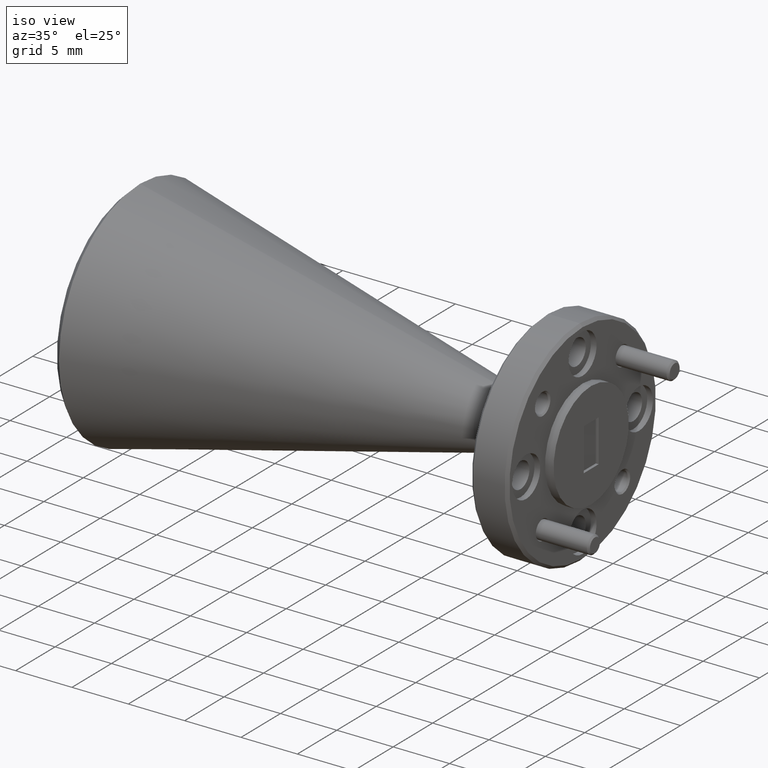
[diagram: clean part render]
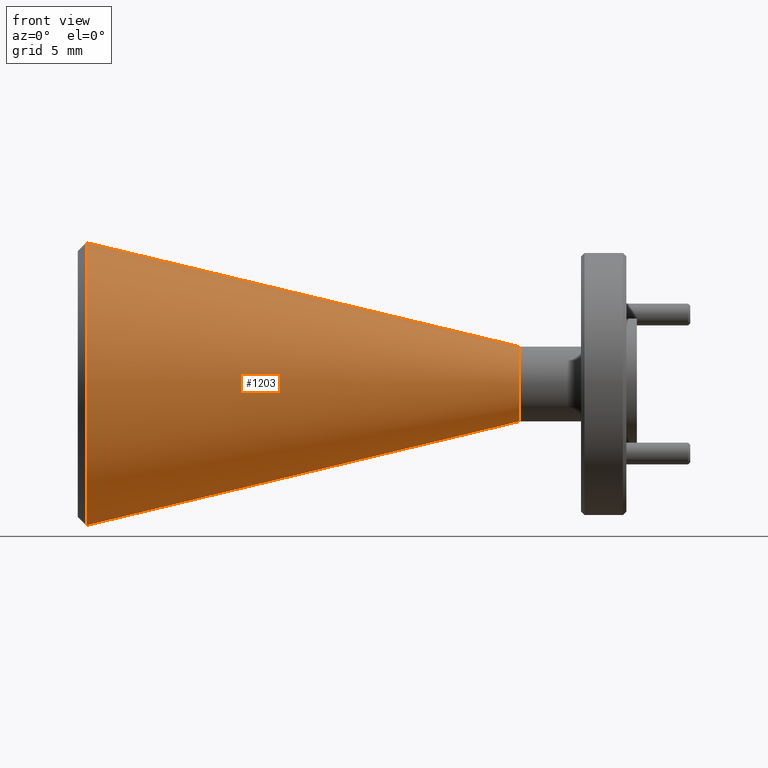
[diagram: tour spotlight — one face highlighted and labeled with its STEP entity id]
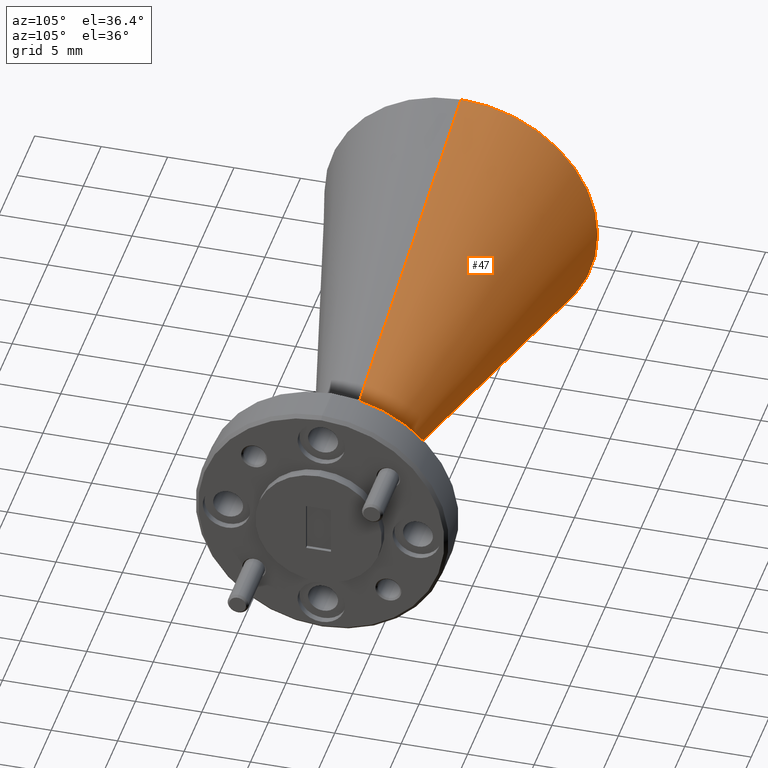
[diagram: tour spotlight — one face highlighted and labeled with its STEP entity id]
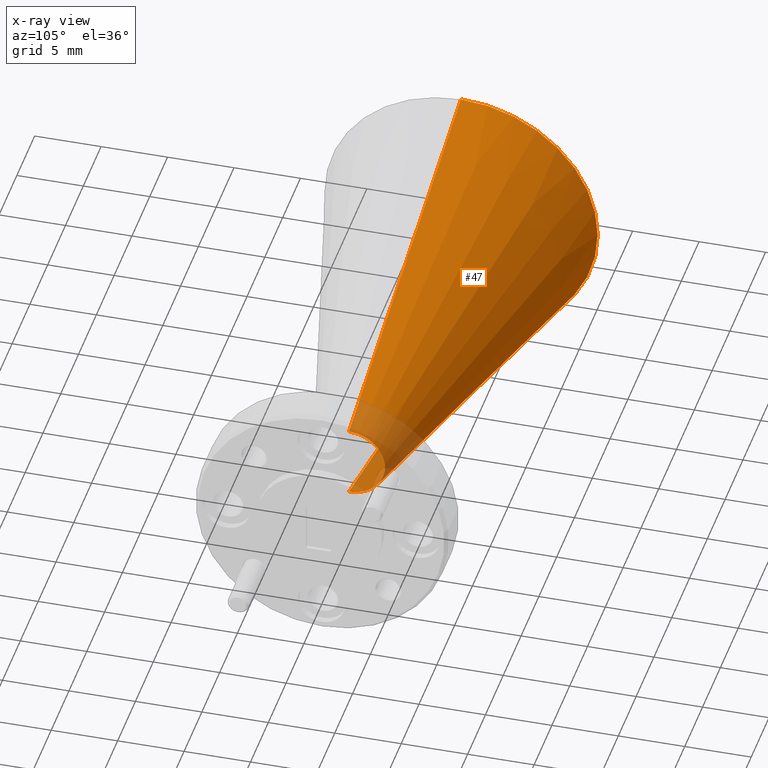
[diagram: x-ray of the same camera — body ghosted, this tour face saturated]
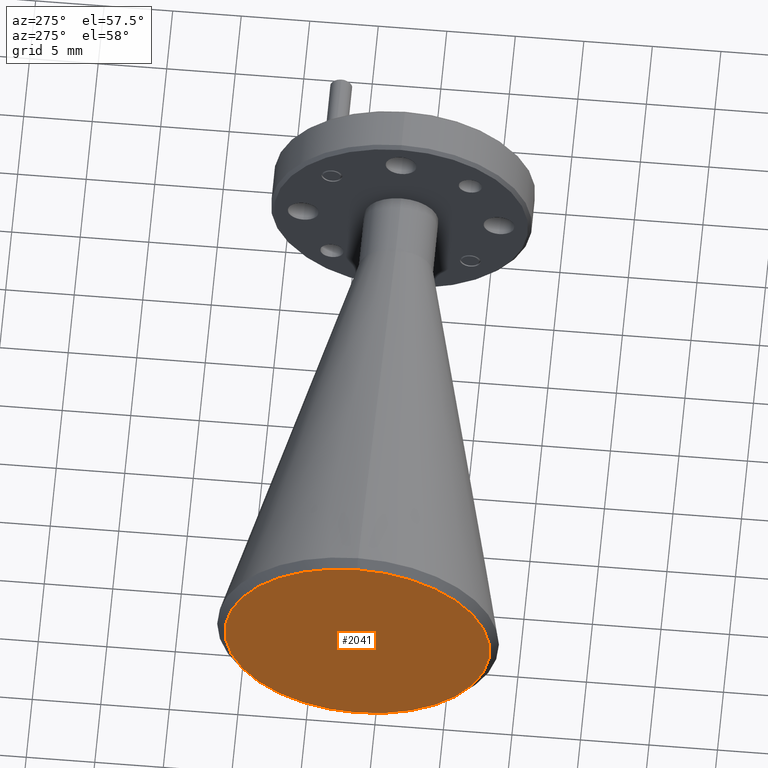
[diagram: tour spotlight — one face highlighted and labeled with its STEP entity id]
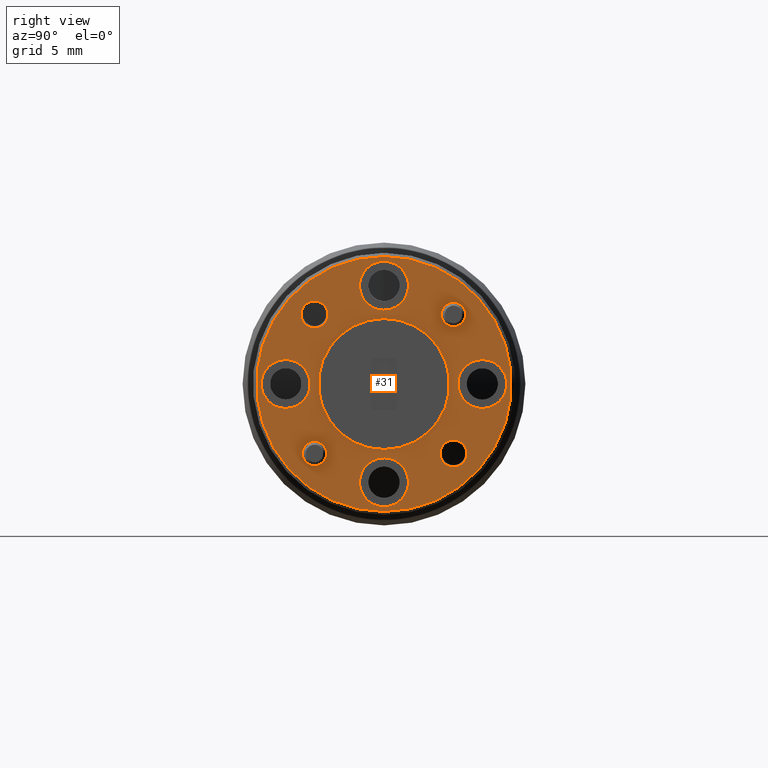
[diagram: tour spotlight — one face highlighted and labeled with its STEP entity id]
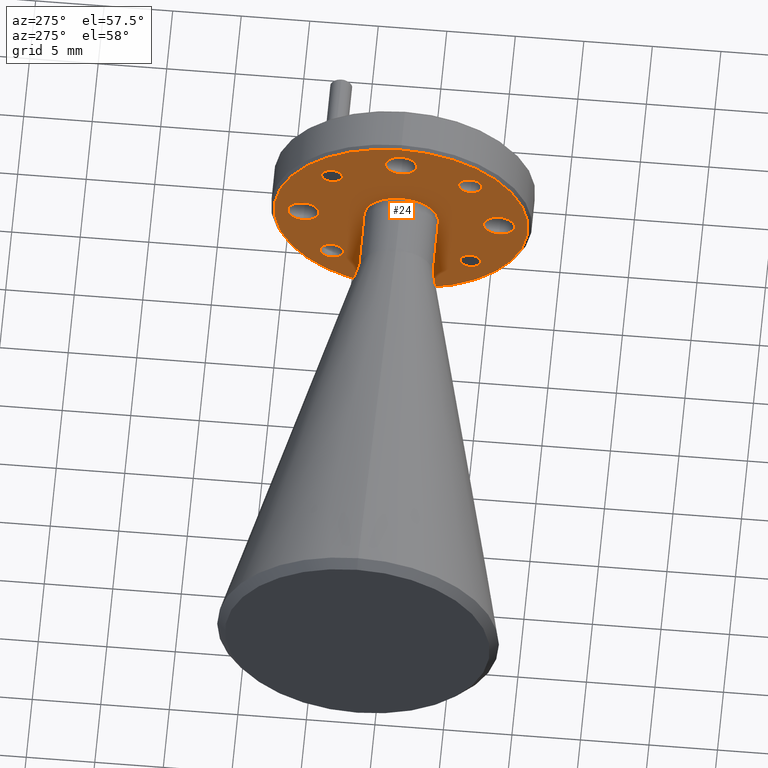
[diagram: tour spotlight — one face highlighted and labeled with its STEP entity id]
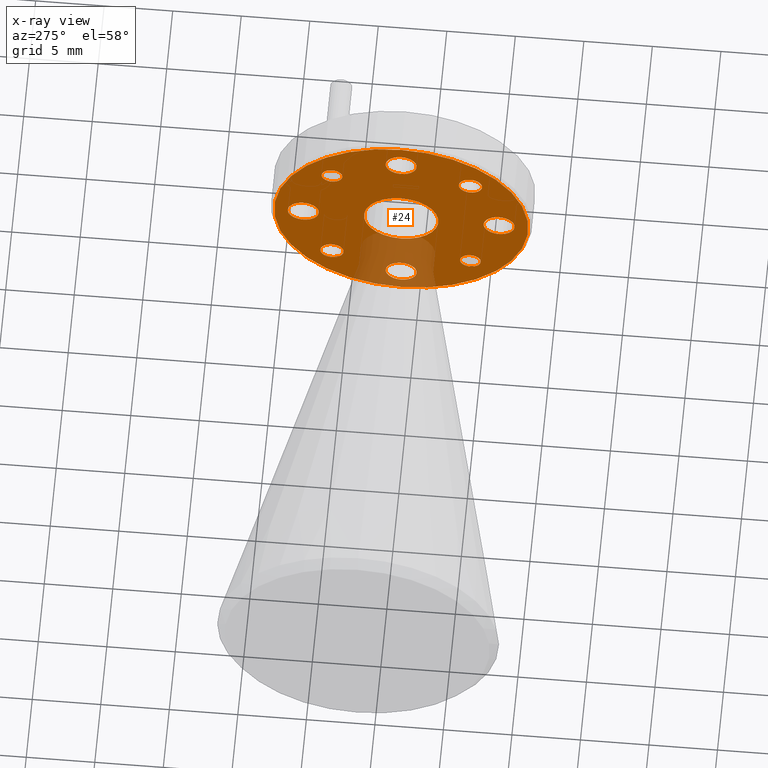
[diagram: x-ray of the same camera — body ghosted, this tour face saturated]
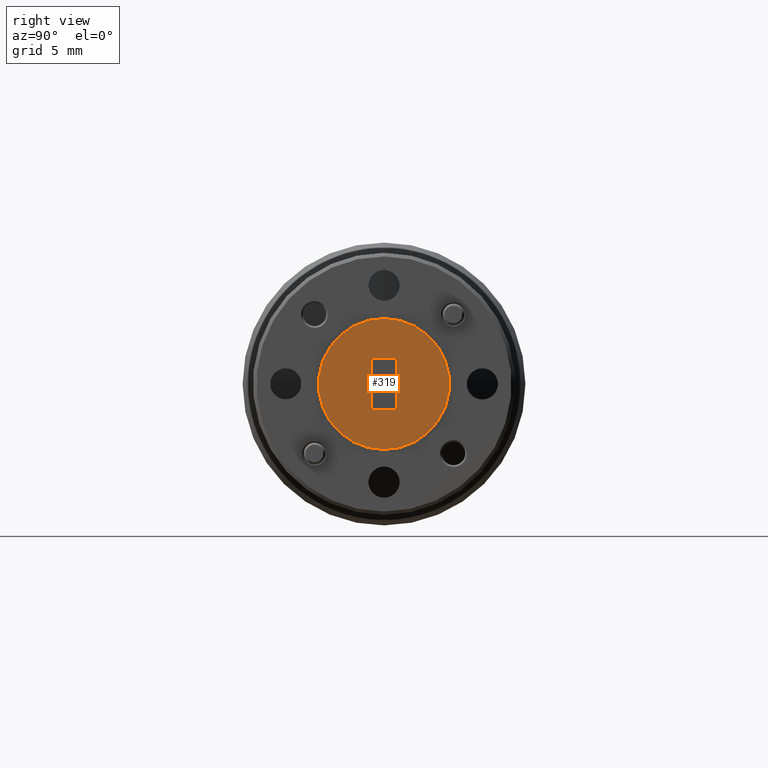
[diagram: tour spotlight — one face highlighted and labeled with its STEP entity id]
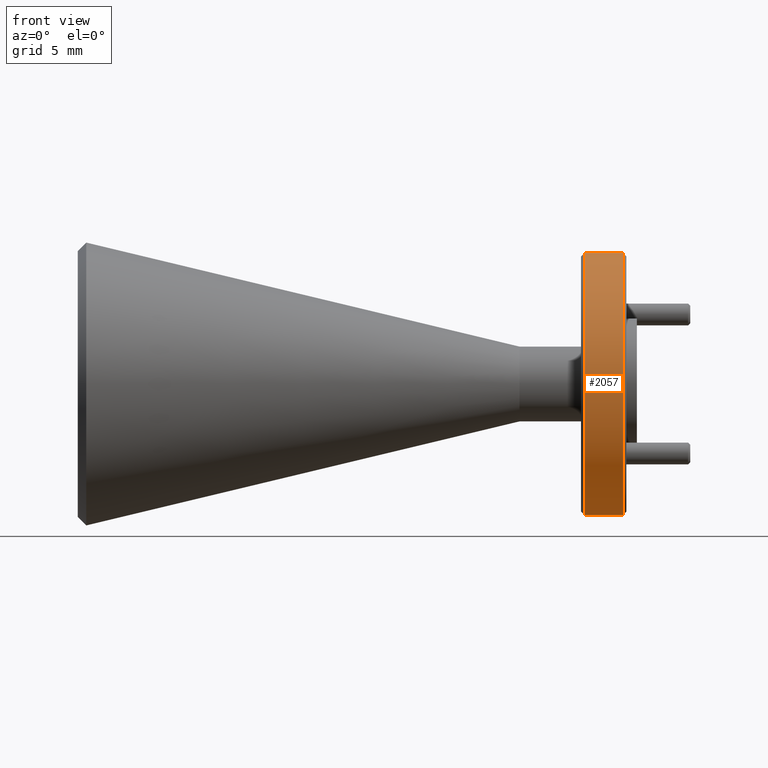
[diagram: tour spotlight — one face highlighted and labeled with its STEP entity id]
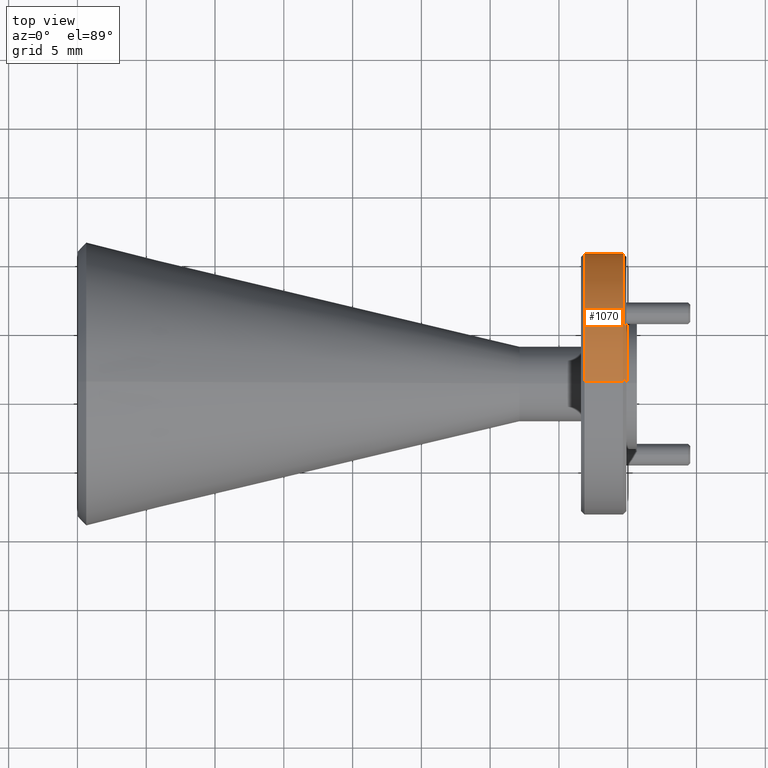
[diagram: tour spotlight — one face highlighted and labeled with its STEP entity id]
A machine part: a face-by-face anatomy tour. The part has 75 B-rep faces; the first image is the clean iso view, then the 8 largest visible faces are spotlighted one at a time (largest first), each with its STEP entity span.

Face 1 — front view, entity #1203. In plain terms, the highlighted conical surface has half-angle 13.5 deg.
Definition (entity closure, byte-faithful):
#20 = AXIS2_PLACEMENT_3D ( 'NONE', #266, #433, #273 ) ;
#60 = VERTEX_POINT ( 'NONE', #653 ) ;
#70 = CARTESIAN_POINT ( 'NONE',  ( -0.3684701128874876600, 0.6410890014899649500, 0.5017078273424021600 ) ) ;
#115 = LINE ( 'NONE', #672, #532 ) ;
#161 = EDGE_CURVE ( 'NONE', #981, #60, #1430, .T. ) ;
#212 = FACE_OUTER_BOUND ( 'NONE', #251, .T. ) ;
#251 = EDGE_LOOP ( 'NONE', ( #612, #2055, #1033, #1363 ) ) ;
#266 = CARTESIAN_POINT ( 'NONE',  ( 0.8715063555128933500, 0.6410890014899649500, 0.9063998391645010600 ) ) ;
#273 = DIRECTION ( 'NONE',  ( 0.0000000000000000000, 0.0000000000000000000, 1.000000000000000000 ) ) ;
#373 = DIRECTION ( 'NONE',  ( 0.0000000000000000000, 0.0000000000000000000, -1.000000000000000000 ) ) ;
#433 = DIRECTION ( 'NONE',  ( -1.000000000000000000, 0.0000000000000000000, 0.0000000000000000000 ) ) ;
#481 = VERTEX_POINT ( 'NONE', #70 ) ;
#532 = VECTOR ( 'NONE', #1854, 39.37007874015748100 ) ;
#566 = VECTOR ( 'NONE', #1681, 39.37007874015748100 ) ;
#611 = EDGE_CURVE ( 'NONE', #60, #481, #1426, .T. ) ;
#612 = ORIENTED_EDGE ( 'NONE', *, *, #879, .F. ) ;
#653 = CARTESIAN_POINT ( 'NONE',  ( -0.3684701128874876600, 0.6410890014899649500, 1.311091850986599900 ) ) ;
#672 = CARTESIAN_POINT ( 'NONE',  ( 0.8715063555128933500, 0.6410890014899649500, 0.7993998391645010800 ) ) ;
#705 = CONICAL_SURFACE ( 'NONE', #20, 0.1069999999999999800, 0.2356194490192274100 ) ;
#879 = EDGE_CURVE ( 'NONE', #1340, #481, #115, .T. ) ;
#981 = VERTEX_POINT ( 'NONE', #1959 ) ;
#989 = CARTESIAN_POINT ( 'NONE',  ( 0.8715063555128933500, 0.6410890014899649500, 0.9063998391645010600 ) ) ;
#1033 = ORIENTED_EDGE ( 'NONE', *, *, #161, .T. ) ;
#1086 = DIRECTION ( 'NONE',  ( 0.0000000000000000000, 0.0000000000000000000, -1.000000000000000000 ) ) ;
#1197 = CARTESIAN_POINT ( 'NONE',  ( 0.8715063555128933500, 0.6410890014899649500, 1.013399839164500900 ) ) ;
#1203 = ADVANCED_FACE ( 'NONE', ( #212 ), #705, .T. ) ;
#1340 = VERTEX_POINT ( 'NONE', #1873 ) ;
#1363 = ORIENTED_EDGE ( 'NONE', *, *, #611, .T. ) ;
#1406 = AXIS2_PLACEMENT_3D ( 'NONE', #1624, #2115, #1086 ) ;
#1426 = CIRCLE ( 'NONE', #1406, 0.4046920118220988000 ) ;
#1430 = LINE ( 'NONE', #1197, #566 ) ;
#1624 = CARTESIAN_POINT ( 'NONE',  ( -0.3684701128874876600, 0.6410890014899649500, 0.9063998391645010600 ) ) ;
#1681 = DIRECTION ( 'NONE',  ( -0.9723699203976782200, 0.0000000000000000000, 0.2334453638558984800 ) ) ;
#1712 = AXIS2_PLACEMENT_3D ( 'NONE', #989, #2032, #373 ) ;
#1854 = DIRECTION ( 'NONE',  ( -0.9723699203976782200, 2.858881176219153300E-017, -0.2334453638558984800 ) ) ;
#1873 = CARTESIAN_POINT ( 'NONE',  ( 0.8715063555128933500, 0.6410890014899649500, 0.7993998391645010800 ) ) ;
#1933 = EDGE_CURVE ( 'NONE', #981, #1340, #2091, .T. ) ;
#1959 = CARTESIAN_POINT ( 'NONE',  ( 0.8715063555128933500, 0.6410890014899649500, 1.013399839164500900 ) ) ;
#2032 = DIRECTION ( 'NONE',  ( 1.000000000000000000, -0.0000000000000000000, -0.0000000000000000000 ) ) ;
#2055 = ORIENTED_EDGE ( 'NONE', *, *, #1933, .F. ) ;
#2091 = CIRCLE ( 'NONE', #1712, 0.1069999999999999800 ) ;
#2115 = DIRECTION ( 'NONE',  ( 1.000000000000000000, -0.0000000000000000000, -0.0000000000000000000 ) ) ;

Face 2 — auxiliary view, entity #47. An x-ray twin of the same camera follows (body ghosted, this face saturated) — the face is partly hidden behind the body. In plain terms, the highlighted conical surface has half-angle 13.5 deg.
Definition (entity closure, byte-faithful):
#3 = DIRECTION ( 'NONE',  ( 1.000000000000000000, -0.0000000000000000000, -0.0000000000000000000 ) ) ;
#39 = AXIS2_PLACEMENT_3D ( 'NONE', #1993, #3, #1222 ) ;
#47 = ADVANCED_FACE ( 'NONE', ( #1536 ), #1089, .T. ) ;
#60 = VERTEX_POINT ( 'NONE', #653 ) ;
#70 = CARTESIAN_POINT ( 'NONE',  ( -0.3684701128874876600, 0.6410890014899649500, 0.5017078273424021600 ) ) ;
#115 = LINE ( 'NONE', #672, #532 ) ;
#145 = DIRECTION ( 'NONE',  ( -1.000000000000000000, 0.0000000000000000000, 0.0000000000000000000 ) ) ;
#161 = EDGE_CURVE ( 'NONE', #981, #60, #1430, .T. ) ;
#376 = ORIENTED_EDGE ( 'NONE', *, *, #1710, .T. ) ;
#481 = VERTEX_POINT ( 'NONE', #70 ) ;
#532 = VECTOR ( 'NONE', #1854, 39.37007874015748100 ) ;
#566 = VECTOR ( 'NONE', #1681, 39.37007874015748100 ) ;
#584 = DIRECTION ( 'NONE',  ( 0.0000000000000000000, 0.0000000000000000000, -1.000000000000000000 ) ) ;
#653 = CARTESIAN_POINT ( 'NONE',  ( -0.3684701128874876600, 0.6410890014899649500, 1.311091850986599900 ) ) ;
#672 = CARTESIAN_POINT ( 'NONE',  ( 0.8715063555128933500, 0.6410890014899649500, 0.7993998391645010800 ) ) ;
#753 = ORIENTED_EDGE ( 'NONE', *, *, #1595, .F. ) ;
#879 = EDGE_CURVE ( 'NONE', #1340, #481, #115, .T. ) ;
#892 = CARTESIAN_POINT ( 'NONE',  ( -0.3684701128874876600, 0.6410890014899649500, 0.9063998391645010600 ) ) ;
#961 = DIRECTION ( 'NONE',  ( 0.0000000000000000000, 0.0000000000000000000, 1.000000000000000000 ) ) ;
#981 = VERTEX_POINT ( 'NONE', #1959 ) ;
#1089 = CONICAL_SURFACE ( 'NONE', #1610, 0.1069999999999999800, 0.2356194490192274100 ) ;
#1137 = CARTESIAN_POINT ( 'NONE',  ( 0.8715063555128933500, 0.6410890014899649500, 0.9063998391645010600 ) ) ;
#1160 = AXIS2_PLACEMENT_3D ( 'NONE', #892, #2063, #584 ) ;
#1197 = CARTESIAN_POINT ( 'NONE',  ( 0.8715063555128933500, 0.6410890014899649500, 1.013399839164500900 ) ) ;
#1218 = ORIENTED_EDGE ( 'NONE', *, *, #161, .F. ) ;
#1222 = DIRECTION ( 'NONE',  ( 0.0000000000000000000, 0.0000000000000000000, -1.000000000000000000 ) ) ;
#1340 = VERTEX_POINT ( 'NONE', #1873 ) ;
#1430 = LINE ( 'NONE', #1197, #566 ) ;
#1476 = EDGE_LOOP ( 'NONE', ( #753, #1983, #376, #1218 ) ) ;
#1536 = FACE_OUTER_BOUND ( 'NONE', #1476, .T. ) ;
#1595 = EDGE_CURVE ( 'NONE', #1340, #981, #1911, .T. ) ;
#1610 = AXIS2_PLACEMENT_3D ( 'NONE', #1137, #145, #961 ) ;
#1681 = DIRECTION ( 'NONE',  ( -0.9723699203976782200, 0.0000000000000000000, 0.2334453638558984800 ) ) ;
#1710 = EDGE_CURVE ( 'NONE', #481, #60, #2025, .T. ) ;
#1854 = DIRECTION ( 'NONE',  ( -0.9723699203976782200, 2.858881176219153300E-017, -0.2334453638558984800 ) ) ;
#1873 = CARTESIAN_POINT ( 'NONE',  ( 0.8715063555128933500, 0.6410890014899649500, 0.7993998391645010800 ) ) ;
#1911 = CIRCLE ( 'NONE', #39, 0.1069999999999999800 ) ;
#1959 = CARTESIAN_POINT ( 'NONE',  ( 0.8715063555128933500, 0.6410890014899649500, 1.013399839164500900 ) ) ;
#1983 = ORIENTED_EDGE ( 'NONE', *, *, #879, .T. ) ;
#1993 = CARTESIAN_POINT ( 'NONE',  ( 0.8715063555128933500, 0.6410890014899649500, 0.9063998391645010600 ) ) ;
#2025 = CIRCLE ( 'NONE', #1160, 0.4046920118220988000 ) ;
#2063 = DIRECTION ( 'NONE',  ( 1.000000000000000000, -0.0000000000000000000, -0.0000000000000000000 ) ) ;

Face 3 — auxiliary view, entity #2041. In plain terms, the highlighted planar face has unit normal (-1, 0, 0).
Definition (entity closure, byte-faithful):
#80 = DIRECTION ( 'NONE',  ( 0.0000000000000000000, 0.0000000000000000000, 1.000000000000000000 ) ) ;
#252 = DIRECTION ( 'NONE',  ( 0.0000000000000000000, 0.0000000000000000000, 1.000000000000000000 ) ) ;
#255 = DIRECTION ( 'NONE',  ( 0.0000000000000000000, 0.0000000000000000000, 1.000000000000000000 ) ) ;
#327 = CARTESIAN_POINT ( 'NONE',  ( -0.3926621247095868900, 0.6410890014899649500, 0.5258998391645015600 ) ) ;
#467 = CARTESIAN_POINT ( 'NONE',  ( -0.3926621247095868900, 0.6410890014899649500, 1.286899839164500600 ) ) ;
#740 = CARTESIAN_POINT ( 'NONE',  ( -0.3926621247095868900, 1.051589001489964700, 0.9063998391645010600 ) ) ;
#886 = DIRECTION ( 'NONE',  ( -1.000000000000000000, 0.0000000000000000000, 0.0000000000000000000 ) ) ;
#976 = ORIENTED_EDGE ( 'NONE', *, *, #1192, .T. ) ;
#1084 = CARTESIAN_POINT ( 'NONE',  ( -0.3926621247095868900, 0.6410890014899649500, 0.9063998391645010600 ) ) ;
#1192 = EDGE_CURVE ( 'NONE', #1603, #1594, #1702, .T. ) ;
#1196 = EDGE_LOOP ( 'NONE', ( #1385, #976 ) ) ;
#1296 = AXIS2_PLACEMENT_3D ( 'NONE', #740, #1574, #252 ) ;
#1354 = FACE_OUTER_BOUND ( 'NONE', #1196, .T. ) ;
#1385 = ORIENTED_EDGE ( 'NONE', *, *, #2108, .T. ) ;
#1412 = CARTESIAN_POINT ( 'NONE',  ( -0.3926621247095868900, 0.6410890014899649500, 0.9063998391645010600 ) ) ;
#1442 = CIRCLE ( 'NONE', #1788, 0.3804999999999995600 ) ;
#1574 = DIRECTION ( 'NONE',  ( -1.000000000000000000, 0.0000000000000000000, 0.0000000000000000000 ) ) ;
#1594 = VERTEX_POINT ( 'NONE', #327 ) ;
#1603 = VERTEX_POINT ( 'NONE', #467 ) ;
#1702 = CIRCLE ( 'NONE', #1967, 0.3804999999999995600 ) ;
#1716 = PLANE ( 'NONE',  #1296 ) ;
#1788 = AXIS2_PLACEMENT_3D ( 'NONE', #1084, #886, #80 ) ;
#1913 = DIRECTION ( 'NONE',  ( -1.000000000000000000, 0.0000000000000000000, 0.0000000000000000000 ) ) ;
#1967 = AXIS2_PLACEMENT_3D ( 'NONE', #1412, #1913, #255 ) ;
#2041 = ADVANCED_FACE ( 'NONE', ( #1354 ), #1716, .T. ) ;
#2108 = EDGE_CURVE ( 'NONE', #1594, #1603, #1442, .T. ) ;

Face 4 — right view, entity #31. In plain terms, the highlighted planar face has unit normal (1, 0, -0).
Definition (entity closure, byte-faithful):
#10 = VERTEX_POINT ( 'NONE', #1644 ) ;
#31 = ADVANCED_FACE ( 'NONE', ( #1061, #1341, #69, #643, #590, #408, #1249, #898, #176, #2034 ), #137, .T. ) ;
#37 = VERTEX_POINT ( 'NONE', #2140 ) ;
#44 = VERTEX_POINT ( 'NONE', #1969 ) ;
#49 = DIRECTION ( 'NONE',  ( 1.000000000000000000, -0.0000000000000000000, -0.0000000000000000000 ) ) ;
#69 = FACE_BOUND ( 'NONE', #1973, .T. ) ;
#72 = DIRECTION ( 'NONE',  ( 1.000000000000000000, -0.0000000000000000000, -0.0000000000000000000 ) ) ;
#83 = CARTESIAN_POINT ( 'NONE',  ( 1.177337875290413300, 0.4422152192812484600, 0.7075260569557845200 ) ) ;
#109 = AXIS2_PLACEMENT_3D ( 'NONE', #1743, #49, #748 ) ;
#117 = EDGE_LOOP ( 'NONE', ( #1704, #1213 ) ) ;
#124 = EDGE_CURVE ( 'NONE', #44, #1144, #1794, .T. ) ;
#137 = PLANE ( 'NONE',  #1896 ) ;
#142 = VERTEX_POINT ( 'NONE', #358 ) ;
#149 = ORIENTED_EDGE ( 'NONE', *, *, #1677, .F. ) ;
#164 = CIRCLE ( 'NONE', #427, 0.03850000000000001300 ) ;
#176 = FACE_OUTER_BOUND ( 'NONE', #432, .T. ) ;
#178 = CARTESIAN_POINT ( 'NONE',  ( 1.177337875290413300, 0.3598390014899648900, 0.8363998391645011100 ) ) ;
#179 = EDGE_CURVE ( 'NONE', #956, #182, #460, .T. ) ;
#182 = VERTEX_POINT ( 'NONE', #178 ) ;
#187 = DIRECTION ( 'NONE',  ( 0.0000000000000000000, 0.0000000000000000000, -1.000000000000000000 ) ) ;
#206 = VERTEX_POINT ( 'NONE', #733 ) ;
#207 = DIRECTION ( 'NONE',  ( 0.0000000000000000000, 0.0000000000000000000, -1.000000000000000000 ) ) ;
#211 = DIRECTION ( 'NONE',  ( 1.000000000000000000, 0.0000000000000000000, 0.0000000000000000000 ) ) ;
#219 = EDGE_CURVE ( 'NONE', #182, #956, #689, .T. ) ;
#231 = EDGE_CURVE ( 'NONE', #272, #1419, #1819, .T. ) ;
#257 = VERTEX_POINT ( 'NONE', #1413 ) ;
#272 = VERTEX_POINT ( 'NONE', #783 ) ;
#286 = DIRECTION ( 'NONE',  ( 0.0000000000000000000, 0.0000000000000000000, -1.000000000000000000 ) ) ;
#294 = CIRCLE ( 'NONE', #1926, 0.03475000000000008600 ) ;
#297 = CARTESIAN_POINT ( 'NONE',  ( 1.177337875290413300, 0.4422152192812484600, 0.6727760569557844600 ) ) ;
#315 = AXIS2_PLACEMENT_3D ( 'NONE', #1696, #1872, #872 ) ;
#316 = EDGE_LOOP ( 'NONE', ( #1064, #1730 ) ) ;
#326 = CARTESIAN_POINT ( 'NONE',  ( 1.177337875290413300, 0.8285890014899649500, 0.9063998391645010600 ) ) ;
#330 = CARTESIAN_POINT ( 'NONE',  ( 1.177337875290413300, 0.8399627836986814900, 1.140023621373217300 ) ) ;
#341 = DIRECTION ( 'NONE',  ( 0.0000000000000000000, 0.0000000000000000000, -1.000000000000000000 ) ) ;
#346 = CIRCLE ( 'NONE', #1277, 0.06999999999999993700 ) ;
#358 = CARTESIAN_POINT ( 'NONE',  ( 1.177337875290413300, 0.4422152192812484600, 1.143773621373217500 ) ) ;
#369 = CARTESIAN_POINT ( 'NONE',  ( 1.177337875290413300, 0.3598390014899648900, 0.9763998391645010200 ) ) ;
#397 = DIRECTION ( 'NONE',  ( 0.0000000000000000000, 0.0000000000000000000, -1.000000000000000000 ) ) ;
#406 = CARTESIAN_POINT ( 'NONE',  ( 1.177337875290413300, 0.6410890014899649500, 1.271399839164500900 ) ) ;
#408 = FACE_BOUND ( 'NONE', #316, .T. ) ;
#418 = DIRECTION ( 'NONE',  ( 1.000000000000000000, 0.0000000000000000000, 0.0000000000000000000 ) ) ;
#427 = AXIS2_PLACEMENT_3D ( 'NONE', #2150, #1300, #1477 ) ;
#432 = EDGE_LOOP ( 'NONE', ( #1622, #1168 ) ) ;
#455 = VERTEX_POINT ( 'NONE', #406 ) ;
#458 = EDGE_CURVE ( 'NONE', #824, #2058, #1640, .T. ) ;
#460 = CIRCLE ( 'NONE', #1304, 0.06999999999999993700 ) ;
#461 = AXIS2_PLACEMENT_3D ( 'NONE', #607, #615, #1777 ) ;
#463 = EDGE_LOOP ( 'NONE', ( #2112, #2049 ) ) ;
#485 = AXIS2_PLACEMENT_3D ( 'NONE', #574, #1077, #750 ) ;
#496 = DIRECTION ( 'NONE',  ( 1.000000000000000000, 0.0000000000000000000, 0.0000000000000000000 ) ) ;
#499 = CARTESIAN_POINT ( 'NONE',  ( 1.177337875290413300, 0.6410890014899649500, 0.9063998391645010600 ) ) ;
#513 = ORIENTED_EDGE ( 'NONE', *, *, #1567, .F. ) ;
#524 = DIRECTION ( 'NONE',  ( 1.000000000000000000, 0.0000000000000000000, 0.0000000000000000000 ) ) ;
#542 = VERTEX_POINT ( 'NONE', #1443 ) ;
#556 = AXIS2_PLACEMENT_3D ( 'NONE', #947, #594, #1773 ) ;
#574 = CARTESIAN_POINT ( 'NONE',  ( 1.177337875290413300, 0.8399627836986814900, 1.105273621373217500 ) ) ;
#590 = FACE_BOUND ( 'NONE', #1691, .T. ) ;
#594 = DIRECTION ( 'NONE',  ( 1.000000000000000000, -0.0000000000000000000, -0.0000000000000000000 ) ) ;
#599 = AXIS2_PLACEMENT_3D ( 'NONE', #873, #211, #207 ) ;
#607 = CARTESIAN_POINT ( 'NONE',  ( 1.177337875290413300, 0.6410890014899649500, 0.9063998391645010600 ) ) ;
#610 = CIRCLE ( 'NONE', #915, 0.3650000000000000500 ) ;
#615 = DIRECTION ( 'NONE',  ( 1.000000000000000000, -0.0000000000000000000, -0.0000000000000000000 ) ) ;
#635 = DIRECTION ( 'NONE',  ( 1.000000000000000000, 0.0000000000000000000, 0.0000000000000000000 ) ) ;
#643 = FACE_BOUND ( 'NONE', #1535, .T. ) ;
#645 = CARTESIAN_POINT ( 'NONE',  ( 1.177337875290413300, 0.6410890014899649500, 0.5551498391645010000 ) ) ;
#662 = EDGE_CURVE ( 'NONE', #10, #37, #1531, .T. ) ;
#665 = AXIS2_PLACEMENT_3D ( 'NONE', #1236, #72, #918 ) ;
#669 = ORIENTED_EDGE ( 'NONE', *, *, #1963, .F. ) ;
#679 = DIRECTION ( 'NONE',  ( 0.0000000000000000000, 0.0000000000000000000, -1.000000000000000000 ) ) ;
#689 = CIRCLE ( 'NONE', #2122, 0.06999999999999993700 ) ;
#693 = AXIS2_PLACEMENT_3D ( 'NONE', #1979, #1132, #286 ) ;
#704 = DIRECTION ( 'NONE',  ( 1.000000000000000000, 0.0000000000000000000, 0.0000000000000000000 ) ) ;
#706 = VERTEX_POINT ( 'NONE', #645 ) ;
#733 = CARTESIAN_POINT ( 'NONE',  ( 1.177337875290413300, 0.9223390014899649500, 0.8363998391645011100 ) ) ;
#738 = CIRCLE ( 'NONE', #1498, 0.03475000000000008600 ) ;
#748 = DIRECTION ( 'NONE',  ( 0.0000000000000000000, 0.0000000000000000000, -1.000000000000000000 ) ) ;
#750 = DIRECTION ( 'NONE',  ( 0.0000000000000000000, 0.0000000000000000000, -1.000000000000000000 ) ) ;
#762 = CIRCLE ( 'NONE', #599, 0.07000000000000000700 ) ;
#780 = EDGE_CURVE ( 'NONE', #1244, #455, #610, .T. ) ;
#783 = CARTESIAN_POINT ( 'NONE',  ( 1.177337875290413300, 0.8399627836986814900, 0.7460260569557845000 ) ) ;
#797 = ORIENTED_EDGE ( 'NONE', *, *, #1280, .F. ) ;
#824 = VERTEX_POINT ( 'NONE', #330 ) ;
#872 = DIRECTION ( 'NONE',  ( 0.0000000000000000000, 0.0000000000000000000, -1.000000000000000000 ) ) ;
#873 = CARTESIAN_POINT ( 'NONE',  ( 1.177337875290413300, 0.6410890014899649500, 0.6251498391645010600 ) ) ;
#898 = FACE_BOUND ( 'NONE', #1369, .T. ) ;
#910 = DIRECTION ( 'NONE',  ( 1.000000000000000000, -0.0000000000000000000, -0.0000000000000000000 ) ) ;
#915 = AXIS2_PLACEMENT_3D ( 'NONE', #499, #2014, #187 ) ;
#916 = DIRECTION ( 'NONE',  ( 1.000000000000000000, -0.0000000000000000000, -0.0000000000000000000 ) ) ;
#918 = DIRECTION ( 'NONE',  ( 0.0000000000000000000, 0.0000000000000000000, -1.000000000000000000 ) ) ;
#930 = EDGE_CURVE ( 'NONE', #1419, #272, #1420, .T. ) ;
#940 = ORIENTED_EDGE ( 'NONE', *, *, #999, .F. ) ;
#947 = CARTESIAN_POINT ( 'NONE',  ( 1.177337875290413300, 0.8399627836986814900, 1.105273621373217500 ) ) ;
#956 = VERTEX_POINT ( 'NONE', #369 ) ;
#980 = DIRECTION ( 'NONE',  ( -0.0000000000000000000, 0.0000000000000000000, -1.000000000000000000 ) ) ;
#995 = CARTESIAN_POINT ( 'NONE',  ( 1.177337875290413300, 0.6410890014899649500, 1.187649839164501200 ) ) ;
#999 = EDGE_CURVE ( 'NONE', #142, #257, #164, .T. ) ;
#1002 = CARTESIAN_POINT ( 'NONE',  ( 1.177337875290413300, 0.4422152192812484600, 0.7422760569557845800 ) ) ;
#1024 = DIRECTION ( 'NONE',  ( 1.000000000000000000, 0.0000000000000000000, 0.0000000000000000000 ) ) ;
#1046 = CIRCLE ( 'NONE', #109, 0.03850000000000001300 ) ;
#1051 = CIRCLE ( 'NONE', #461, 0.3650000000000000500 ) ;
#1061 = FACE_BOUND ( 'NONE', #117, .T. ) ;
#1064 = ORIENTED_EDGE ( 'NONE', *, *, #2167, .F. ) ;
#1074 = AXIS2_PLACEMENT_3D ( 'NONE', #1201, #704, #1522 ) ;
#1077 = DIRECTION ( 'NONE',  ( 1.000000000000000000, -0.0000000000000000000, -0.0000000000000000000 ) ) ;
#1092 = DIRECTION ( 'NONE',  ( 0.0000000000000000000, 0.0000000000000000000, -1.000000000000000000 ) ) ;
#1108 = CARTESIAN_POINT ( 'NONE',  ( 1.177337875290413300, 0.6410890014899649500, 1.257649839164501200 ) ) ;
#1132 = DIRECTION ( 'NONE',  ( 1.000000000000000000, -0.0000000000000000000, -0.0000000000000000000 ) ) ;
#1135 = EDGE_CURVE ( 'NONE', #1229, #1942, #294, .T. ) ;
#1143 = DIRECTION ( 'NONE',  ( 0.0000000000000000000, 0.0000000000000000000, -1.000000000000000000 ) ) ;
#1144 = VERTEX_POINT ( 'NONE', #1108 ) ;
#1158 = AXIS2_PLACEMENT_3D ( 'NONE', #995, #496, #1667 ) ;
#1168 = ORIENTED_EDGE ( 'NONE', *, *, #780, .T. ) ;
#1182 = CIRCLE ( 'NONE', #556, 0.03474999999999994800 ) ;
#1201 = CARTESIAN_POINT ( 'NONE',  ( 1.177337875290413300, 0.9223390014899649500, 0.9063998391645010600 ) ) ;
#1213 = ORIENTED_EDGE ( 'NONE', *, *, #1909, .F. ) ;
#1220 = ORIENTED_EDGE ( 'NONE', *, *, #231, .F. ) ;
#1229 = VERTEX_POINT ( 'NONE', #297 ) ;
#1236 = CARTESIAN_POINT ( 'NONE',  ( 1.177337875290413300, 0.8399627836986814900, 0.7075260569557845200 ) ) ;
#1244 = VERTEX_POINT ( 'NONE', #1475 ) ;
#1248 = CARTESIAN_POINT ( 'NONE',  ( 1.177337875290413300, 0.8399627836986814900, 1.070523621373217400 ) ) ;
#1249 = FACE_BOUND ( 'NONE', #1350, .T. ) ;
#1277 = AXIS2_PLACEMENT_3D ( 'NONE', #1953, #635, #1143 ) ;
#1280 = EDGE_CURVE ( 'NONE', #706, #2133, #1833, .T. ) ;
#1300 = DIRECTION ( 'NONE',  ( 1.000000000000000000, -0.0000000000000000000, -0.0000000000000000000 ) ) ;
#1304 = AXIS2_PLACEMENT_3D ( 'NONE', #1851, #524, #2020 ) ;
#1318 = AXIS2_PLACEMENT_3D ( 'NONE', #2045, #1024, #679 ) ;
#1337 = ORIENTED_EDGE ( 'NONE', *, *, #930, .F. ) ;
#1341 = FACE_BOUND ( 'NONE', #1847, .T. ) ;
#1350 = EDGE_LOOP ( 'NONE', ( #1337, #1220 ) ) ;
#1369 = EDGE_LOOP ( 'NONE', ( #1399, #940 ) ) ;
#1399 = ORIENTED_EDGE ( 'NONE', *, *, #2080, .F. ) ;
#1407 = CARTESIAN_POINT ( 'NONE',  ( 1.177337875290413300, 0.8399627836986814900, 0.6690260569557845400 ) ) ;
#1413 = CARTESIAN_POINT ( 'NONE',  ( 1.177337875290413300, 0.4422152192812484600, 1.066773621373217500 ) ) ;
#1419 = VERTEX_POINT ( 'NONE', #1407 ) ;
#1420 = CIRCLE ( 'NONE', #315, 0.03850000000000001300 ) ;
#1443 = CARTESIAN_POINT ( 'NONE',  ( 1.177337875290413300, 0.9223390014899649500, 0.9763998391645010200 ) ) ;
#1472 = CIRCLE ( 'NONE', #1827, 0.06999999999999993700 ) ;
#1475 = CARTESIAN_POINT ( 'NONE',  ( 1.177337875290413300, 0.6410890014899649500, 0.5413998391645009600 ) ) ;
#1477 = DIRECTION ( 'NONE',  ( 0.0000000000000000000, 0.0000000000000000000, -1.000000000000000000 ) ) ;
#1487 = CARTESIAN_POINT ( 'NONE',  ( 1.177337875290413300, 0.6410890014899649500, 1.187649839164501200 ) ) ;
#1494 = EDGE_CURVE ( 'NONE', #37, #10, #1500, .T. ) ;
#1498 = AXIS2_PLACEMENT_3D ( 'NONE', #2006, #2011, #341 ) ;
#1500 = CIRCLE ( 'NONE', #2138, 0.1874999999999999700 ) ;
#1519 = EDGE_CURVE ( 'NONE', #455, #1244, #1051, .T. ) ;
#1522 = DIRECTION ( 'NONE',  ( 0.0000000000000000000, 0.0000000000000000000, -1.000000000000000000 ) ) ;
#1531 = CIRCLE ( 'NONE', #693, 0.1874999999999999700 ) ;
#1535 = EDGE_LOOP ( 'NONE', ( #669, #513 ) ) ;
#1567 = EDGE_CURVE ( 'NONE', #542, #206, #346, .T. ) ;
#1570 = CARTESIAN_POINT ( 'NONE',  ( 1.177337875290413300, 0.6410890014899649500, 0.6951498391645009000 ) ) ;
#1612 = CARTESIAN_POINT ( 'NONE',  ( 1.177337875290413300, 0.6410890014899649500, 0.9063998391645010600 ) ) ;
#1622 = ORIENTED_EDGE ( 'NONE', *, *, #1519, .T. ) ;
#1640 = CIRCLE ( 'NONE', #485, 0.03474999999999994800 ) ;
#1644 = CARTESIAN_POINT ( 'NONE',  ( 1.177337875290413300, 0.6410890014899649500, 0.7188998391645010600 ) ) ;
#1659 = ORIENTED_EDGE ( 'NONE', *, *, #179, .F. ) ;
#1667 = DIRECTION ( 'NONE',  ( 0.0000000000000000000, 0.0000000000000000000, -1.000000000000000000 ) ) ;
#1677 = EDGE_CURVE ( 'NONE', #1942, #1229, #738, .T. ) ;
#1691 = EDGE_LOOP ( 'NONE', ( #2013, #149 ) ) ;
#1696 = CARTESIAN_POINT ( 'NONE',  ( 1.177337875290413300, 0.8399627836986814900, 0.7075260569557845200 ) ) ;
#1704 = ORIENTED_EDGE ( 'NONE', *, *, #124, .F. ) ;
#1729 = CARTESIAN_POINT ( 'NONE',  ( 1.177337875290413300, 0.3598390014899648900, 0.9063998391645010600 ) ) ;
#1730 = ORIENTED_EDGE ( 'NONE', *, *, #458, .F. ) ;
#1743 = CARTESIAN_POINT ( 'NONE',  ( 1.177337875290413300, 0.4422152192812484600, 1.105273621373217500 ) ) ;
#1770 = ORIENTED_EDGE ( 'NONE', *, *, #219, .F. ) ;
#1773 = DIRECTION ( 'NONE',  ( 0.0000000000000000000, 0.0000000000000000000, -1.000000000000000000 ) ) ;
#1777 = DIRECTION ( 'NONE',  ( 0.0000000000000000000, 0.0000000000000000000, -1.000000000000000000 ) ) ;
#1794 = CIRCLE ( 'NONE', #1158, 0.06999999999999993700 ) ;
#1809 = CIRCLE ( 'NONE', #1074, 0.06999999999999993700 ) ;
#1819 = CIRCLE ( 'NONE', #665, 0.03850000000000001300 ) ;
#1827 = AXIS2_PLACEMENT_3D ( 'NONE', #1487, #2154, #2008 ) ;
#1833 = CIRCLE ( 'NONE', #1318, 0.07000000000000000700 ) ;
#1840 = ORIENTED_EDGE ( 'NONE', *, *, #1996, .F. ) ;
#1847 = EDGE_LOOP ( 'NONE', ( #1770, #1659 ) ) ;
#1851 = CARTESIAN_POINT ( 'NONE',  ( 1.177337875290413300, 0.3598390014899648900, 0.9063998391645010600 ) ) ;
#1872 = DIRECTION ( 'NONE',  ( 1.000000000000000000, -0.0000000000000000000, -0.0000000000000000000 ) ) ;
#1896 = AXIS2_PLACEMENT_3D ( 'NONE', #326, #1984, #980 ) ;
#1909 = EDGE_CURVE ( 'NONE', #1144, #44, #1472, .T. ) ;
#1926 = AXIS2_PLACEMENT_3D ( 'NONE', #83, #910, #2107 ) ;
#1942 = VERTEX_POINT ( 'NONE', #1002 ) ;
#1953 = CARTESIAN_POINT ( 'NONE',  ( 1.177337875290413300, 0.9223390014899649500, 0.9063998391645010600 ) ) ;
#1963 = EDGE_CURVE ( 'NONE', #206, #542, #1809, .T. ) ;
#1969 = CARTESIAN_POINT ( 'NONE',  ( 1.177337875290413300, 0.6410890014899649500, 1.117649839164501100 ) ) ;
#1973 = EDGE_LOOP ( 'NONE', ( #797, #1840 ) ) ;
#1979 = CARTESIAN_POINT ( 'NONE',  ( 1.177337875290413300, 0.6410890014899649500, 0.9063998391645010600 ) ) ;
#1984 = DIRECTION ( 'NONE',  ( 1.000000000000000000, 0.0000000000000000000, -0.0000000000000000000 ) ) ;
#1996 = EDGE_CURVE ( 'NONE', #2133, #706, #762, .T. ) ;
#2006 = CARTESIAN_POINT ( 'NONE',  ( 1.177337875290413300, 0.4422152192812484600, 0.7075260569557845200 ) ) ;
#2008 = DIRECTION ( 'NONE',  ( 0.0000000000000000000, 0.0000000000000000000, -1.000000000000000000 ) ) ;
#2011 = DIRECTION ( 'NONE',  ( 1.000000000000000000, -0.0000000000000000000, -0.0000000000000000000 ) ) ;
#2013 = ORIENTED_EDGE ( 'NONE', *, *, #1135, .F. ) ;
#2014 = DIRECTION ( 'NONE',  ( 1.000000000000000000, -0.0000000000000000000, -0.0000000000000000000 ) ) ;
#2020 = DIRECTION ( 'NONE',  ( 0.0000000000000000000, 0.0000000000000000000, -1.000000000000000000 ) ) ;
#2034 = FACE_BOUND ( 'NONE', #463, .T. ) ;
#2045 = CARTESIAN_POINT ( 'NONE',  ( 1.177337875290413300, 0.6410890014899649500, 0.6251498391645010600 ) ) ;
#2049 = ORIENTED_EDGE ( 'NONE', *, *, #1494, .F. ) ;
#2058 = VERTEX_POINT ( 'NONE', #1248 ) ;
#2080 = EDGE_CURVE ( 'NONE', #257, #142, #1046, .T. ) ;
#2107 = DIRECTION ( 'NONE',  ( 0.0000000000000000000, 0.0000000000000000000, -1.000000000000000000 ) ) ;
#2112 = ORIENTED_EDGE ( 'NONE', *, *, #662, .F. ) ;
#2122 = AXIS2_PLACEMENT_3D ( 'NONE', #1729, #418, #397 ) ;
#2133 = VERTEX_POINT ( 'NONE', #1570 ) ;
#2138 = AXIS2_PLACEMENT_3D ( 'NONE', #1612, #916, #1092 ) ;
#2140 = CARTESIAN_POINT ( 'NONE',  ( 1.177337875290413300, 0.6410890014899649500, 1.093899839164501000 ) ) ;
#2150 = CARTESIAN_POINT ( 'NONE',  ( 1.177337875290413300, 0.4422152192812484600, 1.105273621373217500 ) ) ;
#2154 = DIRECTION ( 'NONE',  ( 1.000000000000000000, 0.0000000000000000000, 0.0000000000000000000 ) ) ;
#2167 = EDGE_CURVE ( 'NONE', #2058, #824, #1182, .T. ) ;

Face 5 — auxiliary view, entity #24. An x-ray twin of the same camera follows (body ghosted, this face saturated) — the face is partly hidden behind the body. In plain terms, the highlighted planar face has unit normal (-1, 0, 0).
Definition (entity closure, byte-faithful):
#6 = EDGE_CURVE ( 'NONE', #328, #1276, #1878, .T. ) ;
#17 = EDGE_CURVE ( 'NONE', #1855, #1666, #1753, .T. ) ;
#24 = ADVANCED_FACE ( 'NONE', ( #861, #292, #2022, #1720, #1575, #1133, #1632, #1184, #1034, #952 ), #987, .T. ) ;
#33 = AXIS2_PLACEMENT_3D ( 'NONE', #1374, #906, #389 ) ;
#41 = EDGE_CURVE ( 'NONE', #660, #1563, #1947, .T. ) ;
#55 = CIRCLE ( 'NONE', #934, 0.03349999999999993300 ) ;
#88 = ORIENTED_EDGE ( 'NONE', *, *, #1564, .F. ) ;
#93 = EDGE_CURVE ( 'NONE', #782, #1114, #1461, .T. ) ;
#129 = DIRECTION ( 'NONE',  ( 1.000000000000000000, -0.0000000000000000000, -0.0000000000000000000 ) ) ;
#139 = CARTESIAN_POINT ( 'NONE',  ( 1.047337875290413400, 0.3598390014899648900, 0.9508998391645008300 ) ) ;
#143 = VERTEX_POINT ( 'NONE', #2165 ) ;
#152 = DIRECTION ( 'NONE',  ( -1.000000000000000000, 0.0000000000000000000, 0.0000000000000000000 ) ) ;
#162 = DIRECTION ( 'NONE',  ( -1.000000000000000000, 0.0000000000000000000, 0.0000000000000000000 ) ) ;
#168 = EDGE_LOOP ( 'NONE', ( #88, #1177 ) ) ;
#172 = VERTEX_POINT ( 'NONE', #839 ) ;
#174 = CIRCLE ( 'NONE', #33, 0.04449999999999975500 ) ;
#191 = DIRECTION ( 'NONE',  ( 0.0000000000000000000, 0.0000000000000000000, -1.000000000000000000 ) ) ;
#203 = DIRECTION ( 'NONE',  ( 0.0000000000000000000, 0.0000000000000000000, 1.000000000000000000 ) ) ;
#215 = DIRECTION ( 'NONE',  ( -1.000000000000000000, 0.0000000000000000000, 0.0000000000000000000 ) ) ;
#238 = DIRECTION ( 'NONE',  ( 0.0000000000000000000, 0.0000000000000000000, 1.000000000000000000 ) ) ;
#239 = CARTESIAN_POINT ( 'NONE',  ( 1.047337875290413400, 0.8399627836986814900, 1.135023621373217400 ) ) ;
#284 = VERTEX_POINT ( 'NONE', #1457 ) ;
#292 = FACE_BOUND ( 'NONE', #457, .T. ) ;
#311 = ORIENTED_EDGE ( 'NONE', *, *, #6, .T. ) ;
#328 = VERTEX_POINT ( 'NONE', #929 ) ;
#333 = AXIS2_PLACEMENT_3D ( 'NONE', #1804, #129, #648 ) ;
#334 = ORIENTED_EDGE ( 'NONE', *, *, #1246, .F. ) ;
#336 = ORIENTED_EDGE ( 'NONE', *, *, #871, .T. ) ;
#337 = AXIS2_PLACEMENT_3D ( 'NONE', #972, #1466, #462 ) ;
#345 = CIRCLE ( 'NONE', #1703, 0.04449999999999975500 ) ;
#348 = CARTESIAN_POINT ( 'NONE',  ( 1.047337875290413400, 0.6410890014899649500, 0.6251498391645010600 ) ) ;
#359 = EDGE_CURVE ( 'NONE', #1666, #1855, #174, .T. ) ;
#361 = VERTEX_POINT ( 'NONE', #1447 ) ;
#374 = ORIENTED_EDGE ( 'NONE', *, *, #17, .F. ) ;
#381 = EDGE_LOOP ( 'NONE', ( #1170, #374 ) ) ;
#389 = DIRECTION ( 'NONE',  ( 0.0000000000000000000, 0.0000000000000000000, 1.000000000000000000 ) ) ;
#399 = CARTESIAN_POINT ( 'NONE',  ( 1.047337875290413400, 0.4422152192812484600, 0.7075260569557845200 ) ) ;
#410 = VERTEX_POINT ( 'NONE', #888 ) ;
#426 = CARTESIAN_POINT ( 'NONE',  ( 1.047337875290413400, 0.9223390014899649500, 0.9508998391645008300 ) ) ;
#440 = CARTESIAN_POINT ( 'NONE',  ( 1.047337875290413400, 0.6410890014899649500, 0.6251498391645010600 ) ) ;
#450 = ORIENTED_EDGE ( 'NONE', *, *, #2145, .F. ) ;
#457 = EDGE_LOOP ( 'NONE', ( #1433, #450 ) ) ;
#462 = DIRECTION ( 'NONE',  ( 0.0000000000000000000, 0.0000000000000000000, 1.000000000000000000 ) ) ;
#470 = AXIS2_PLACEMENT_3D ( 'NONE', #1611, #1775, #1799 ) ;
#476 = DIRECTION ( 'NONE',  ( -1.000000000000000000, 0.0000000000000000000, 0.0000000000000000000 ) ) ;
#482 = DIRECTION ( 'NONE',  ( 0.0000000000000000000, 0.0000000000000000000, 1.000000000000000000 ) ) ;
#498 = CARTESIAN_POINT ( 'NONE',  ( 1.047337875290413400, 0.4422152192812484600, 1.105273621373217500 ) ) ;
#502 = CARTESIAN_POINT ( 'NONE',  ( 1.047337875290413400, 0.8399627836986814900, 0.7075260569557845200 ) ) ;
#521 = CARTESIAN_POINT ( 'NONE',  ( 1.047337875290413400, 0.9223390014899649500, 0.8618998391645013000 ) ) ;
#523 = CARTESIAN_POINT ( 'NONE',  ( 1.047337875290413400, 0.6410890014899649500, 1.271399839164500900 ) ) ;
#536 = DIRECTION ( 'NONE',  ( 1.000000000000000000, -0.0000000000000000000, -0.0000000000000000000 ) ) ;
#537 = CARTESIAN_POINT ( 'NONE',  ( 1.047337875290413400, 0.6410890014899649500, 1.013399839164500900 ) ) ;
#596 = DIRECTION ( 'NONE',  ( -1.000000000000000000, 0.0000000000000000000, 0.0000000000000000000 ) ) ;
#625 = AXIS2_PLACEMENT_3D ( 'NONE', #627, #2157, #1651 ) ;
#627 = CARTESIAN_POINT ( 'NONE',  ( 1.047337875290413400, 1.016089001489964800, 0.9063998391645010600 ) ) ;
#634 = DIRECTION ( 'NONE',  ( 0.0000000000000000000, 0.0000000000000000000, 1.000000000000000000 ) ) ;
#636 = CIRCLE ( 'NONE', #2040, 0.3649999999999999400 ) ;
#648 = DIRECTION ( 'NONE',  ( 0.0000000000000000000, 0.0000000000000000000, -1.000000000000000000 ) ) ;
#657 = DIRECTION ( 'NONE',  ( -1.000000000000000000, 0.0000000000000000000, 0.0000000000000000000 ) ) ;
#660 = VERTEX_POINT ( 'NONE', #1151 ) ;
#664 = ORIENTED_EDGE ( 'NONE', *, *, #41, .F. ) ;
#681 = CIRCLE ( 'NONE', #1526, 0.04449999999999975500 ) ;
#682 = DIRECTION ( 'NONE',  ( -1.000000000000000000, 0.0000000000000000000, 0.0000000000000000000 ) ) ;
#683 = CIRCLE ( 'NONE', #703, 0.02975000000000000200 ) ;
#697 = DIRECTION ( 'NONE',  ( -1.000000000000000000, 0.0000000000000000000, 0.0000000000000000000 ) ) ;
#703 = AXIS2_PLACEMENT_3D ( 'NONE', #399, #215, #238 ) ;
#735 = CIRCLE ( 'NONE', #470, 0.02975000000000000200 ) ;
#747 = VERTEX_POINT ( 'NONE', #139 ) ;
#774 = VERTEX_POINT ( 'NONE', #1972 ) ;
#778 = ORIENTED_EDGE ( 'NONE', *, *, #941, .T. ) ;
#781 = EDGE_LOOP ( 'NONE', ( #1141, #664 ) ) ;
#782 = VERTEX_POINT ( 'NONE', #1329 ) ;
#813 = DIRECTION ( 'NONE',  ( 0.0000000000000000000, 0.0000000000000000000, 1.000000000000000000 ) ) ;
#827 = DIRECTION ( 'NONE',  ( -1.000000000000000000, 0.0000000000000000000, 0.0000000000000000000 ) ) ;
#832 = CARTESIAN_POINT ( 'NONE',  ( 1.047337875290413400, 0.3598390014899648900, 0.9063998391645010600 ) ) ;
#839 = CARTESIAN_POINT ( 'NONE',  ( 1.047337875290413400, 0.6410890014899649500, 0.6696498391645008300 ) ) ;
#843 = DIRECTION ( 'NONE',  ( -1.000000000000000000, 0.0000000000000000000, 0.0000000000000000000 ) ) ;
#845 = DIRECTION ( 'NONE',  ( -1.000000000000000000, 0.0000000000000000000, 0.0000000000000000000 ) ) ;
#846 = AXIS2_PLACEMENT_3D ( 'NONE', #502, #827, #1529 ) ;
#861 = FACE_BOUND ( 'NONE', #1902, .T. ) ;
#862 = DIRECTION ( 'NONE',  ( 0.0000000000000000000, 0.0000000000000000000, 1.000000000000000000 ) ) ;
#863 = CIRCLE ( 'NONE', #1032, 0.3649999999999999400 ) ;
#871 = EDGE_CURVE ( 'NONE', #1945, #1093, #636, .T. ) ;
#888 = CARTESIAN_POINT ( 'NONE',  ( 1.047337875290413400, 0.6410890014899649500, 1.232149839164500900 ) ) ;
#890 = CIRCLE ( 'NONE', #1162, 0.04449999999999975500 ) ;
#901 = EDGE_CURVE ( 'NONE', #1276, #328, #1334, .T. ) ;
#906 = DIRECTION ( 'NONE',  ( -1.000000000000000000, 0.0000000000000000000, 0.0000000000000000000 ) ) ;
#929 = CARTESIAN_POINT ( 'NONE',  ( 1.047337875290413400, 0.6410890014899649500, 0.7993998391645010800 ) ) ;
#934 = AXIS2_PLACEMENT_3D ( 'NONE', #498, #2158, #1343 ) ;
#941 = EDGE_CURVE ( 'NONE', #1093, #1945, #863, .T. ) ;
#952 = FACE_BOUND ( 'NONE', #1895, .T. ) ;
#957 = EDGE_CURVE ( 'NONE', #361, #774, #735, .T. ) ;
#967 = AXIS2_PLACEMENT_3D ( 'NONE', #1634, #152, #634 ) ;
#972 = CARTESIAN_POINT ( 'NONE',  ( 1.047337875290413400, 0.8399627836986814900, 0.7075260569557845200 ) ) ;
#982 = CARTESIAN_POINT ( 'NONE',  ( 1.047337875290413400, 0.6410890014899649500, 0.9063998391645010600 ) ) ;
#987 = PLANE ( 'NONE',  #625 ) ;
#996 = DIRECTION ( 'NONE',  ( 0.0000000000000000000, 0.0000000000000000000, 1.000000000000000000 ) ) ;
#1005 = AXIS2_PLACEMENT_3D ( 'NONE', #1656, #845, #1664 ) ;
#1008 = DIRECTION ( 'NONE',  ( -1.000000000000000000, 0.0000000000000000000, 0.0000000000000000000 ) ) ;
#1032 = AXIS2_PLACEMENT_3D ( 'NONE', #1700, #697, #862 ) ;
#1034 = FACE_OUTER_BOUND ( 'NONE', #1839, .T. ) ;
#1091 = EDGE_CURVE ( 'NONE', #1671, #747, #345, .T. ) ;
#1093 = VERTEX_POINT ( 'NONE', #523 ) ;
#1114 = VERTEX_POINT ( 'NONE', #1208 ) ;
#1133 = FACE_BOUND ( 'NONE', #1884, .T. ) ;
#1141 = ORIENTED_EDGE ( 'NONE', *, *, #1626, .F. ) ;
#1146 = EDGE_CURVE ( 'NONE', #172, #143, #2097, .T. ) ;
#1151 = CARTESIAN_POINT ( 'NONE',  ( 1.047337875290413400, 0.4422152192812484600, 1.138773621373217400 ) ) ;
#1153 = CARTESIAN_POINT ( 'NONE',  ( 1.047337875290413400, 0.4422152192812484600, 1.071773621373217600 ) ) ;
#1162 = AXIS2_PLACEMENT_3D ( 'NONE', #1518, #1008, #996 ) ;
#1170 = ORIENTED_EDGE ( 'NONE', *, *, #359, .F. ) ;
#1177 = ORIENTED_EDGE ( 'NONE', *, *, #93, .F. ) ;
#1184 = FACE_BOUND ( 'NONE', #381, .T. ) ;
#1208 = CARTESIAN_POINT ( 'NONE',  ( 1.047337875290413400, 0.8399627836986814900, 0.6740260569557845500 ) ) ;
#1219 = AXIS2_PLACEMENT_3D ( 'NONE', #2015, #162, #482 ) ;
#1246 = EDGE_CURVE ( 'NONE', #410, #284, #1654, .T. ) ;
#1258 = CARTESIAN_POINT ( 'NONE',  ( 1.047337875290413400, 0.8399627836986814900, 1.105273621373217500 ) ) ;
#1268 = ORIENTED_EDGE ( 'NONE', *, *, #901, .T. ) ;
#1276 = VERTEX_POINT ( 'NONE', #537 ) ;
#1285 = AXIS2_PLACEMENT_3D ( 'NONE', #982, #536, #191 ) ;
#1294 = ORIENTED_EDGE ( 'NONE', *, *, #1146, .F. ) ;
#1303 = CIRCLE ( 'NONE', #2094, 0.02975000000000000200 ) ;
#1329 = CARTESIAN_POINT ( 'NONE',  ( 1.047337875290413400, 0.8399627836986814900, 0.7410260569557843800 ) ) ;
#1334 = CIRCLE ( 'NONE', #1285, 0.1069999999999999800 ) ;
#1343 = DIRECTION ( 'NONE',  ( 0.0000000000000000000, 0.0000000000000000000, 1.000000000000000000 ) ) ;
#1374 = CARTESIAN_POINT ( 'NONE',  ( 1.047337875290413400, 0.9223390014899649500, 0.9063998391645010600 ) ) ;
#1414 = CIRCLE ( 'NONE', #1005, 0.02975000000000000200 ) ;
#1433 = ORIENTED_EDGE ( 'NONE', *, *, #1891, .F. ) ;
#1437 = VERTEX_POINT ( 'NONE', #1715 ) ;
#1447 = CARTESIAN_POINT ( 'NONE',  ( 1.047337875290413400, 0.4422152192812484600, 0.6777760569557844700 ) ) ;
#1457 = CARTESIAN_POINT ( 'NONE',  ( 1.047337875290413400, 0.6410890014899649500, 1.143149839164501400 ) ) ;
#1461 = CIRCLE ( 'NONE', #846, 0.03349999999999993300 ) ;
#1463 = VERTEX_POINT ( 'NONE', #239 ) ;
#1464 = ORIENTED_EDGE ( 'NONE', *, *, #957, .F. ) ;
#1466 = DIRECTION ( 'NONE',  ( -1.000000000000000000, 0.0000000000000000000, 0.0000000000000000000 ) ) ;
#1482 = EDGE_LOOP ( 'NONE', ( #1618, #1294 ) ) ;
#1518 = CARTESIAN_POINT ( 'NONE',  ( 1.047337875290413400, 0.3598390014899648900, 0.9063998391645010600 ) ) ;
#1526 = AXIS2_PLACEMENT_3D ( 'NONE', #1846, #657, #1822 ) ;
#1529 = DIRECTION ( 'NONE',  ( 0.0000000000000000000, 0.0000000000000000000, 1.000000000000000000 ) ) ;
#1532 = ORIENTED_EDGE ( 'NONE', *, *, #1874, .F. ) ;
#1543 = ORIENTED_EDGE ( 'NONE', *, *, #1091, .F. ) ;
#1563 = VERTEX_POINT ( 'NONE', #1153 ) ;
#1564 = EDGE_CURVE ( 'NONE', #1114, #782, #2046, .T. ) ;
#1575 = FACE_BOUND ( 'NONE', #1482, .T. ) ;
#1611 = CARTESIAN_POINT ( 'NONE',  ( 1.047337875290413400, 0.4422152192812484600, 0.7075260569557845200 ) ) ;
#1616 = AXIS2_PLACEMENT_3D ( 'NONE', #348, #682, #2027 ) ;
#1618 = ORIENTED_EDGE ( 'NONE', *, *, #1690, .F. ) ;
#1626 = EDGE_CURVE ( 'NONE', #1563, #660, #55, .T. ) ;
#1632 = FACE_BOUND ( 'NONE', #2101, .T. ) ;
#1633 = CIRCLE ( 'NONE', #1616, 0.04449999999999975500 ) ;
#1634 = CARTESIAN_POINT ( 'NONE',  ( 1.047337875290413400, 0.4422152192812484600, 1.105273621373217500 ) ) ;
#1650 = EDGE_CURVE ( 'NONE', #747, #1671, #890, .T. ) ;
#1651 = DIRECTION ( 'NONE',  ( 0.0000000000000000000, 0.0000000000000000000, 1.000000000000000000 ) ) ;
#1654 = CIRCLE ( 'NONE', #1219, 0.04449999999999975500 ) ;
#1656 = CARTESIAN_POINT ( 'NONE',  ( 1.047337875290413400, 0.8399627836986814900, 1.105273621373217500 ) ) ;
#1664 = DIRECTION ( 'NONE',  ( 0.0000000000000000000, 0.0000000000000000000, 1.000000000000000000 ) ) ;
#1666 = VERTEX_POINT ( 'NONE', #521 ) ;
#1668 = CARTESIAN_POINT ( 'NONE',  ( 1.047337875290413400, 0.3598390014899648900, 0.8618998391645013000 ) ) ;
#1670 = DIRECTION ( 'NONE',  ( 0.0000000000000000000, 0.0000000000000000000, 1.000000000000000000 ) ) ;
#1671 = VERTEX_POINT ( 'NONE', #1668 ) ;
#1684 = DIRECTION ( 'NONE',  ( -1.000000000000000000, 0.0000000000000000000, 0.0000000000000000000 ) ) ;
#1690 = EDGE_CURVE ( 'NONE', #143, #172, #1633, .T. ) ;
#1700 = CARTESIAN_POINT ( 'NONE',  ( 1.047337875290413400, 0.6410890014899649500, 0.9063998391645010600 ) ) ;
#1703 = AXIS2_PLACEMENT_3D ( 'NONE', #832, #1684, #203 ) ;
#1715 = CARTESIAN_POINT ( 'NONE',  ( 1.047337875290413400, 0.8399627836986814900, 1.075523621373217600 ) ) ;
#1720 = FACE_BOUND ( 'NONE', #781, .T. ) ;
#1753 = CIRCLE ( 'NONE', #1981, 0.04449999999999975500 ) ;
#1771 = EDGE_CURVE ( 'NONE', #774, #361, #683, .T. ) ;
#1775 = DIRECTION ( 'NONE',  ( -1.000000000000000000, 0.0000000000000000000, 0.0000000000000000000 ) ) ;
#1799 = DIRECTION ( 'NONE',  ( 0.0000000000000000000, 0.0000000000000000000, 1.000000000000000000 ) ) ;
#1804 = CARTESIAN_POINT ( 'NONE',  ( 1.047337875290413400, 0.6410890014899649500, 0.9063998391645010600 ) ) ;
#1822 = DIRECTION ( 'NONE',  ( 0.0000000000000000000, 0.0000000000000000000, 1.000000000000000000 ) ) ;
#1834 = CARTESIAN_POINT ( 'NONE',  ( 1.047337875290413400, 0.6410890014899649500, 0.9063998391645010600 ) ) ;
#1839 = EDGE_LOOP ( 'NONE', ( #336, #778 ) ) ;
#1846 = CARTESIAN_POINT ( 'NONE',  ( 1.047337875290413400, 0.6410890014899649500, 1.187649839164501200 ) ) ;
#1855 = VERTEX_POINT ( 'NONE', #426 ) ;
#1858 = AXIS2_PLACEMENT_3D ( 'NONE', #440, #596, #1928 ) ;
#1874 = EDGE_CURVE ( 'NONE', #284, #410, #681, .T. ) ;
#1878 = CIRCLE ( 'NONE', #333, 0.1069999999999999800 ) ;
#1884 = EDGE_LOOP ( 'NONE', ( #1543, #2104 ) ) ;
#1891 = EDGE_CURVE ( 'NONE', #1437, #1463, #1414, .T. ) ;
#1895 = EDGE_LOOP ( 'NONE', ( #311, #1268 ) ) ;
#1899 = ORIENTED_EDGE ( 'NONE', *, *, #1771, .F. ) ;
#1900 = DIRECTION ( 'NONE',  ( -1.000000000000000000, 0.0000000000000000000, 0.0000000000000000000 ) ) ;
#1902 = EDGE_LOOP ( 'NONE', ( #1464, #1899 ) ) ;
#1928 = DIRECTION ( 'NONE',  ( 0.0000000000000000000, 0.0000000000000000000, 1.000000000000000000 ) ) ;
#1945 = VERTEX_POINT ( 'NONE', #1997 ) ;
#1947 = CIRCLE ( 'NONE', #967, 0.03349999999999993300 ) ;
#1972 = CARTESIAN_POINT ( 'NONE',  ( 1.047337875290413400, 0.4422152192812484600, 0.7372760569557844600 ) ) ;
#1981 = AXIS2_PLACEMENT_3D ( 'NONE', #1992, #476, #813 ) ;
#1992 = CARTESIAN_POINT ( 'NONE',  ( 1.047337875290413400, 0.9223390014899649500, 0.9063998391645010600 ) ) ;
#1997 = CARTESIAN_POINT ( 'NONE',  ( 1.047337875290413400, 0.6410890014899649500, 0.5413998391645010700 ) ) ;
#2015 = CARTESIAN_POINT ( 'NONE',  ( 1.047337875290413400, 0.6410890014899649500, 1.187649839164501200 ) ) ;
#2022 = FACE_BOUND ( 'NONE', #168, .T. ) ;
#2027 = DIRECTION ( 'NONE',  ( 0.0000000000000000000, 0.0000000000000000000, 1.000000000000000000 ) ) ;
#2040 = AXIS2_PLACEMENT_3D ( 'NONE', #1834, #843, #1670 ) ;
#2046 = CIRCLE ( 'NONE', #337, 0.03349999999999993300 ) ;
#2094 = AXIS2_PLACEMENT_3D ( 'NONE', #1258, #1900, #2096 ) ;
#2096 = DIRECTION ( 'NONE',  ( 0.0000000000000000000, 0.0000000000000000000, 1.000000000000000000 ) ) ;
#2097 = CIRCLE ( 'NONE', #1858, 0.04449999999999975500 ) ;
#2101 = EDGE_LOOP ( 'NONE', ( #1532, #334 ) ) ;
#2104 = ORIENTED_EDGE ( 'NONE', *, *, #1650, .F. ) ;
#2145 = EDGE_CURVE ( 'NONE', #1463, #1437, #1303, .T. ) ;
#2157 = DIRECTION ( 'NONE',  ( -1.000000000000000000, 0.0000000000000000000, 0.0000000000000000000 ) ) ;
#2158 = DIRECTION ( 'NONE',  ( -1.000000000000000000, 0.0000000000000000000, 0.0000000000000000000 ) ) ;
#2165 = CARTESIAN_POINT ( 'NONE',  ( 1.047337875290413400, 0.6410890014899649500, 0.5806498391645013000 ) ) ;

Face 6 — right view, entity #319. In plain terms, the highlighted planar face has unit normal (1, 0, -0).
Definition (entity closure, byte-faithful):
#51 = CARTESIAN_POINT ( 'NONE',  ( 1.207337875290413400, 0.6040890014899649200, 0.8323998391645011100 ) ) ;
#103 = VERTEX_POINT ( 'NONE', #51 ) ;
#123 = VECTOR ( 'NONE', #1946, 39.37007874015748100 ) ;
#146 = CARTESIAN_POINT ( 'NONE',  ( 1.207337875290413400, 0.6410890014899649500, 0.9063998391645010600 ) ) ;
#190 = VECTOR ( 'NONE', #2125, 39.37007874015748100 ) ;
#224 = AXIS2_PLACEMENT_3D ( 'NONE', #146, #814, #1131 ) ;
#225 = FACE_OUTER_BOUND ( 'NONE', #283, .T. ) ;
#236 = DIRECTION ( 'NONE',  ( -0.0000000000000000000, -1.000000000000000000, -0.0000000000000000000 ) ) ;
#246 = EDGE_CURVE ( 'NONE', #617, #425, #925, .T. ) ;
#259 = DIRECTION ( 'NONE',  ( 1.000000000000000000, -0.0000000000000000000, -0.0000000000000000000 ) ) ;
#276 = EDGE_CURVE ( 'NONE', #425, #103, #1866, .T. ) ;
#283 = EDGE_LOOP ( 'NONE', ( #322, #869 ) ) ;
#318 = CIRCLE ( 'NONE', #1652, 0.1874999999999999700 ) ;
#319 = ADVANCED_FACE ( 'NONE', ( #951, #225 ), #1284, .T. ) ;
#322 = ORIENTED_EDGE ( 'NONE', *, *, #1458, .T. ) ;
#385 = EDGE_CURVE ( 'NONE', #559, #617, #799, .T. ) ;
#425 = VERTEX_POINT ( 'NONE', #2076 ) ;
#451 = CARTESIAN_POINT ( 'NONE',  ( 1.207337875290413400, 0.6410890014899649500, 0.9063998391645010600 ) ) ;
#509 = ORIENTED_EDGE ( 'NONE', *, *, #246, .F. ) ;
#559 = VERTEX_POINT ( 'NONE', #1774 ) ;
#605 = DIRECTION ( 'NONE',  ( 1.000000000000000000, 0.0000000000000000000, -0.0000000000000000000 ) ) ;
#617 = VERTEX_POINT ( 'NONE', #926 ) ;
#639 = ORIENTED_EDGE ( 'NONE', *, *, #1534, .F. ) ;
#661 = VERTEX_POINT ( 'NONE', #949 ) ;
#799 = LINE ( 'NONE', #2062, #1558 ) ;
#814 = DIRECTION ( 'NONE',  ( 1.000000000000000000, -0.0000000000000000000, -0.0000000000000000000 ) ) ;
#867 = VERTEX_POINT ( 'NONE', #1660 ) ;
#869 = ORIENTED_EDGE ( 'NONE', *, *, #1548, .T. ) ;
#925 = LINE ( 'NONE', #1423, #1009 ) ;
#926 = CARTESIAN_POINT ( 'NONE',  ( 1.207337875290413400, 0.6780890014899649800, 0.9803998391645010200 ) ) ;
#949 = CARTESIAN_POINT ( 'NONE',  ( 1.207337875290413400, 0.6410890014899649500, 1.093899839164501000 ) ) ;
#951 = FACE_BOUND ( 'NONE', #1297, .T. ) ;
#1009 = VECTOR ( 'NONE', #236, 39.37007874015748100 ) ;
#1101 = DIRECTION ( 'NONE',  ( -0.0000000000000000000, 0.0000000000000000000, -1.000000000000000000 ) ) ;
#1131 = DIRECTION ( 'NONE',  ( 0.0000000000000000000, 0.0000000000000000000, -1.000000000000000000 ) ) ;
#1227 = ORIENTED_EDGE ( 'NONE', *, *, #385, .F. ) ;
#1284 = PLANE ( 'NONE',  #2093 ) ;
#1297 = EDGE_LOOP ( 'NONE', ( #509, #1227, #639, #1922 ) ) ;
#1423 = CARTESIAN_POINT ( 'NONE',  ( 1.207337875290413400, 0.6040890014899649200, 0.9803998391645010200 ) ) ;
#1458 = EDGE_CURVE ( 'NONE', #867, #661, #318, .T. ) ;
#1474 = CIRCLE ( 'NONE', #224, 0.1874999999999999700 ) ;
#1534 = EDGE_CURVE ( 'NONE', #103, #559, #1782, .T. ) ;
#1548 = EDGE_CURVE ( 'NONE', #661, #867, #1474, .T. ) ;
#1558 = VECTOR ( 'NONE', #1727, 39.37007874015748100 ) ;
#1599 = CARTESIAN_POINT ( 'NONE',  ( 1.207337875290413400, 0.6410890014899649500, 0.9063998391645010600 ) ) ;
#1648 = CARTESIAN_POINT ( 'NONE',  ( 1.207337875290413400, 0.6040890014899649200, 0.8323998391645011100 ) ) ;
#1652 = AXIS2_PLACEMENT_3D ( 'NONE', #1599, #259, #1749 ) ;
#1660 = CARTESIAN_POINT ( 'NONE',  ( 1.207337875290413400, 0.6410890014899649500, 0.7188998391645010600 ) ) ;
#1727 = DIRECTION ( 'NONE',  ( 0.0000000000000000000, -1.153652024351462600E-016, 1.000000000000000000 ) ) ;
#1747 = CARTESIAN_POINT ( 'NONE',  ( 1.207337875290413400, 0.6040890014899649200, 0.8323998391645011100 ) ) ;
#1749 = DIRECTION ( 'NONE',  ( 0.0000000000000000000, 0.0000000000000000000, -1.000000000000000000 ) ) ;
#1774 = CARTESIAN_POINT ( 'NONE',  ( 1.207337875290413400, 0.6780890014899649800, 0.8323998391645011100 ) ) ;
#1782 = LINE ( 'NONE', #1648, #190 ) ;
#1866 = LINE ( 'NONE', #1747, #123 ) ;
#1922 = ORIENTED_EDGE ( 'NONE', *, *, #276, .F. ) ;
#1946 = DIRECTION ( 'NONE',  ( -0.0000000000000000000, 1.153652024351462600E-016, -1.000000000000000000 ) ) ;
#2062 = CARTESIAN_POINT ( 'NONE',  ( 1.207337875290413400, 0.6780890014899649800, 0.8323998391645011100 ) ) ;
#2076 = CARTESIAN_POINT ( 'NONE',  ( 1.207337875290413400, 0.6040890014899649200, 0.9803998391645010200 ) ) ;
#2093 = AXIS2_PLACEMENT_3D ( 'NONE', #451, #605, #1101 ) ;
#2125 = DIRECTION ( 'NONE',  ( 0.0000000000000000000, 1.000000000000000000, 0.0000000000000000000 ) ) ;

Face 7 — front view, entity #2057. In plain terms, the highlighted cylindrical surface (partial cylindrical patch) has radius 9.525 mm, axis along (1, -0, -0).
Definition (entity closure, byte-faithful):
#167 = CARTESIAN_POINT ( 'NONE',  ( 1.167337875290413300, 0.6410890014899649500, 0.9063998391645010600 ) ) ;
#192 = EDGE_CURVE ( 'NONE', #275, #307, #1481, .T. ) ;
#218 = ORIENTED_EDGE ( 'NONE', *, *, #1663, .T. ) ;
#229 = DIRECTION ( 'NONE',  ( 1.000000000000000000, -0.0000000000000000000, -0.0000000000000000000 ) ) ;
#270 = CARTESIAN_POINT ( 'NONE',  ( 1.167337875290413300, 0.6410890014899649500, 1.281399839164501200 ) ) ;
#275 = VERTEX_POINT ( 'NONE', #435 ) ;
#307 = VERTEX_POINT ( 'NONE', #270 ) ;
#338 = DIRECTION ( 'NONE',  ( -1.000000000000000000, 0.0000000000000000000, 0.0000000000000000000 ) ) ;
#343 = EDGE_CURVE ( 'NONE', #1685, #836, #511, .T. ) ;
#347 = CARTESIAN_POINT ( 'NONE',  ( 1.207337875290413400, 0.6410890014899649500, 1.281399839164501200 ) ) ;
#431 = DIRECTION ( 'NONE',  ( 1.000000000000000000, -0.0000000000000000000, -0.0000000000000000000 ) ) ;
#435 = CARTESIAN_POINT ( 'NONE',  ( 1.057337875290413000, 0.6410890014899649500, 1.281399839164501200 ) ) ;
#477 = ORIENTED_EDGE ( 'NONE', *, *, #500, .T. ) ;
#500 = EDGE_CURVE ( 'NONE', #275, #1685, #1886, .T. ) ;
#511 = LINE ( 'NONE', #767, #1247 ) ;
#519 = ORIENTED_EDGE ( 'NONE', *, *, #192, .F. ) ;
#578 = FACE_OUTER_BOUND ( 'NONE', #854, .T. ) ;
#587 = CARTESIAN_POINT ( 'NONE',  ( 1.207337875290413400, 0.6410890014899649500, 0.9063998391645010600 ) ) ;
#767 = CARTESIAN_POINT ( 'NONE',  ( 1.207337875290413400, 0.6410890014899649500, 0.5313998391645010600 ) ) ;
#836 = VERTEX_POINT ( 'NONE', #1010 ) ;
#854 = EDGE_LOOP ( 'NONE', ( #519, #477, #2052, #218 ) ) ;
#944 = CIRCLE ( 'NONE', #1375, 0.3750000000000000600 ) ;
#1010 = CARTESIAN_POINT ( 'NONE',  ( 1.167337875290413300, 0.6410890014899649500, 0.5313998391645010600 ) ) ;
#1125 = AXIS2_PLACEMENT_3D ( 'NONE', #587, #229, #2074 ) ;
#1179 = DIRECTION ( 'NONE',  ( 0.0000000000000000000, 0.0000000000000000000, -1.000000000000000000 ) ) ;
#1247 = VECTOR ( 'NONE', #1440, 39.37007874015748100 ) ;
#1266 = DIRECTION ( 'NONE',  ( 0.0000000000000000000, 0.0000000000000000000, 1.000000000000000000 ) ) ;
#1375 = AXIS2_PLACEMENT_3D ( 'NONE', #167, #338, #1179 ) ;
#1421 = CARTESIAN_POINT ( 'NONE',  ( 1.057337875290413000, 0.6410890014899649500, 0.9063998391645010600 ) ) ;
#1440 = DIRECTION ( 'NONE',  ( 1.000000000000000000, -0.0000000000000000000, -0.0000000000000000000 ) ) ;
#1481 = LINE ( 'NONE', #347, #1643 ) ;
#1643 = VECTOR ( 'NONE', #2026, 39.37007874015748100 ) ;
#1663 = EDGE_CURVE ( 'NONE', #836, #307, #944, .T. ) ;
#1685 = VERTEX_POINT ( 'NONE', #1852 ) ;
#1852 = CARTESIAN_POINT ( 'NONE',  ( 1.057337875290413000, 0.6410890014899649500, 0.5313998391645010600 ) ) ;
#1860 = CYLINDRICAL_SURFACE ( 'NONE', #1125, 0.3750000000000000600 ) ;
#1886 = CIRCLE ( 'NONE', #2148, 0.3750000000000001100 ) ;
#2026 = DIRECTION ( 'NONE',  ( 1.000000000000000000, -0.0000000000000000000, -0.0000000000000000000 ) ) ;
#2052 = ORIENTED_EDGE ( 'NONE', *, *, #343, .T. ) ;
#2057 = ADVANCED_FACE ( 'NONE', ( #578 ), #1860, .T. ) ;
#2074 = DIRECTION ( 'NONE',  ( 0.0000000000000000000, 0.0000000000000000000, -1.000000000000000000 ) ) ;
#2148 = AXIS2_PLACEMENT_3D ( 'NONE', #1421, #431, #1266 ) ;

Face 8 — top view, entity #1070. In plain terms, the highlighted cylindrical surface (partial cylindrical patch) has radius 9.525 mm, axis along (1, -0, -0).
Definition (entity closure, byte-faithful):
#192 = EDGE_CURVE ( 'NONE', #275, #307, #1481, .T. ) ;
#270 = CARTESIAN_POINT ( 'NONE',  ( 1.167337875290413300, 0.6410890014899649500, 1.281399839164501200 ) ) ;
#275 = VERTEX_POINT ( 'NONE', #435 ) ;
#307 = VERTEX_POINT ( 'NONE', #270 ) ;
#343 = EDGE_CURVE ( 'NONE', #1685, #836, #511, .T. ) ;
#347 = CARTESIAN_POINT ( 'NONE',  ( 1.207337875290413400, 0.6410890014899649500, 1.281399839164501200 ) ) ;
#423 = EDGE_CURVE ( 'NONE', #1685, #275, #896, .T. ) ;
#435 = CARTESIAN_POINT ( 'NONE',  ( 1.057337875290413000, 0.6410890014899649500, 1.281399839164501200 ) ) ;
#511 = LINE ( 'NONE', #767, #1247 ) ;
#531 = DIRECTION ( 'NONE',  ( 0.0000000000000000000, 0.0000000000000000000, -1.000000000000000000 ) ) ;
#579 = DIRECTION ( 'NONE',  ( 0.0000000000000000000, 0.0000000000000000000, 1.000000000000000000 ) ) ;
#767 = CARTESIAN_POINT ( 'NONE',  ( 1.207337875290413400, 0.6410890014899649500, 0.5313998391645010600 ) ) ;
#784 = AXIS2_PLACEMENT_3D ( 'NONE', #1586, #875, #579 ) ;
#790 = CYLINDRICAL_SURFACE ( 'NONE', #2002, 0.3750000000000000600 ) ;
#828 = DIRECTION ( 'NONE',  ( 0.0000000000000000000, 0.0000000000000000000, -1.000000000000000000 ) ) ;
#836 = VERTEX_POINT ( 'NONE', #1010 ) ;
#870 = ORIENTED_EDGE ( 'NONE', *, *, #192, .T. ) ;
#875 = DIRECTION ( 'NONE',  ( 1.000000000000000000, -0.0000000000000000000, -0.0000000000000000000 ) ) ;
#896 = CIRCLE ( 'NONE', #784, 0.3750000000000001100 ) ;
#905 = AXIS2_PLACEMENT_3D ( 'NONE', #1326, #1831, #828 ) ;
#1010 = CARTESIAN_POINT ( 'NONE',  ( 1.167337875290413300, 0.6410890014899649500, 0.5313998391645010600 ) ) ;
#1013 = DIRECTION ( 'NONE',  ( 1.000000000000000000, -0.0000000000000000000, -0.0000000000000000000 ) ) ;
#1035 = ORIENTED_EDGE ( 'NONE', *, *, #1638, .T. ) ;
#1070 = ADVANCED_FACE ( 'NONE', ( #1380 ), #790, .T. ) ;
#1126 = ORIENTED_EDGE ( 'NONE', *, *, #423, .T. ) ;
#1247 = VECTOR ( 'NONE', #1440, 39.37007874015748100 ) ;
#1326 = CARTESIAN_POINT ( 'NONE',  ( 1.167337875290413300, 0.6410890014899649500, 0.9063998391645010600 ) ) ;
#1380 = FACE_OUTER_BOUND ( 'NONE', #2033, .T. ) ;
#1394 = ORIENTED_EDGE ( 'NONE', *, *, #343, .F. ) ;
#1440 = DIRECTION ( 'NONE',  ( 1.000000000000000000, -0.0000000000000000000, -0.0000000000000000000 ) ) ;
#1481 = LINE ( 'NONE', #347, #1643 ) ;
#1586 = CARTESIAN_POINT ( 'NONE',  ( 1.057337875290413000, 0.6410890014899649500, 0.9063998391645010600 ) ) ;
#1606 = CIRCLE ( 'NONE', #905, 0.3750000000000000600 ) ;
#1638 = EDGE_CURVE ( 'NONE', #307, #836, #1606, .T. ) ;
#1643 = VECTOR ( 'NONE', #2026, 39.37007874015748100 ) ;
#1685 = VERTEX_POINT ( 'NONE', #1852 ) ;
#1831 = DIRECTION ( 'NONE',  ( -1.000000000000000000, 0.0000000000000000000, 0.0000000000000000000 ) ) ;
#1852 = CARTESIAN_POINT ( 'NONE',  ( 1.057337875290413000, 0.6410890014899649500, 0.5313998391645010600 ) ) ;
#2002 = AXIS2_PLACEMENT_3D ( 'NONE', #2018, #1013, #531 ) ;
#2018 = CARTESIAN_POINT ( 'NONE',  ( 1.207337875290413400, 0.6410890014899649500, 0.9063998391645010600 ) ) ;
#2026 = DIRECTION ( 'NONE',  ( 1.000000000000000000, -0.0000000000000000000, -0.0000000000000000000 ) ) ;
#2033 = EDGE_LOOP ( 'NONE', ( #1126, #870, #1035, #1394 ) ) ;